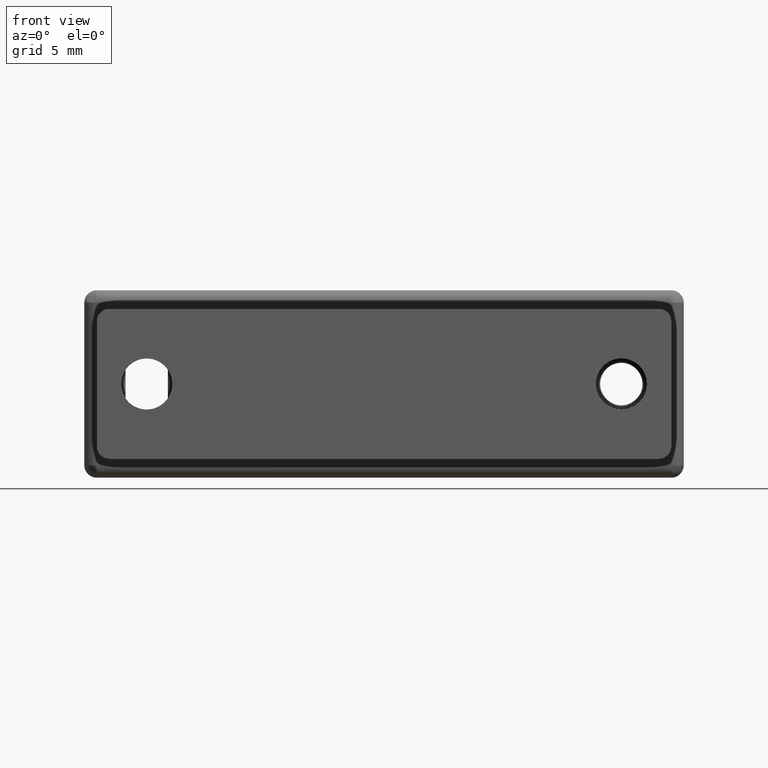
[diagram: clean part render]
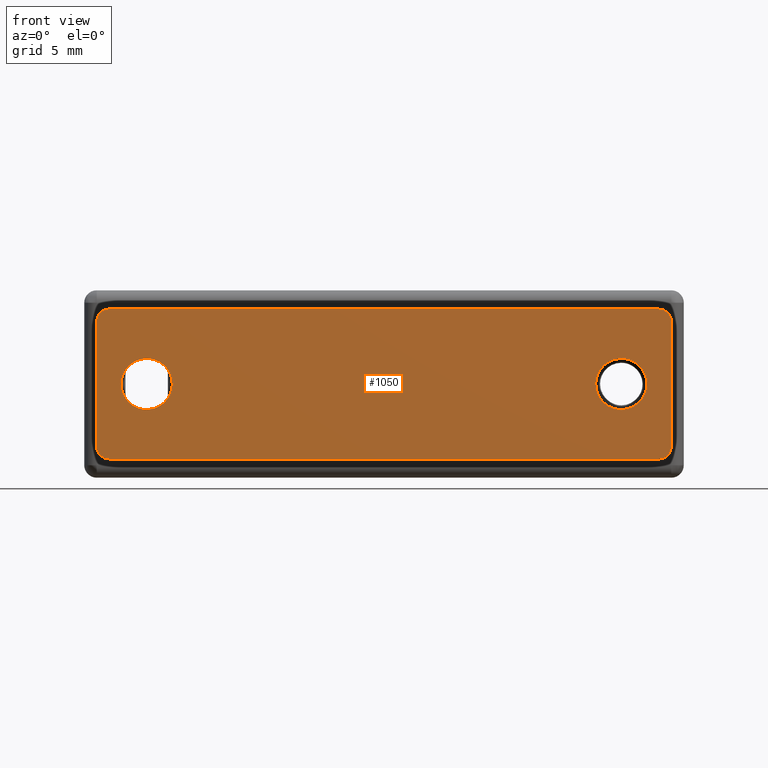
[diagram: same view with one face highlighted and labeled with its STEP entity id]
A machine part, front view. The second image highlights one B-rep face of the part: STEP entity #1050.
In plain terms, the highlighted face is a freeform B-spline surface patch.
Its self-contained STEP definition (entity closure, byte-faithful):
#467=CARTESIAN_POINT('',(-20.436864079127460,-29.999999999999559,-1.462163536301785));
#468=VERTEX_POINT('',#467);
#474=CARTESIAN_POINT('',(-19.0,-29.999999999999559,-2.050000000000000));
#475=VERTEX_POINT('',#474);
#476=CARTESIAN_POINT('',(-20.436864079127460,-29.999999999999559,-1.462163536301785));
#477=CARTESIAN_POINT('',(-20.289054048411650,-29.999999999999559,-1.607552764063697));
#478=CARTESIAN_POINT('',(-20.023668851965841,-29.999999999999559,-1.798805916572945));
#479=CARTESIAN_POINT('',(-19.530669847668840,-29.999999999999559,-2.000495183890043));
#480=CARTESIAN_POINT('',(-19.207329776754200,-29.999999999999559,-2.050106442760528));
#481=CARTESIAN_POINT('',(-19.0,-29.999999999999559,-2.050000000000000));
#482=B_SPLINE_CURVE_WITH_KNOTS('',3,(#476,#477,#478,#479,#480,#481),.UNSPECIFIED.,.F.,.U.,(4,1,1,4),(0.000000017414785,0.621949200354569,0.970237233710934,1.592186416656537),.UNSPECIFIED.);
#483=EDGE_CURVE('',#468,#475,#482,.T.);
#485=CARTESIAN_POINT('',(-16.950000000000081,-29.999999999999559,0.000000574504489));
#486=VERTEX_POINT('',#485);
#487=CARTESIAN_POINT('',(-19.0,-29.999999999999559,-2.050000000000000));
#488=CARTESIAN_POINT('',(-18.765185600314471,-29.999999999999559,-2.050150103275939));
#489=CARTESIAN_POINT('',(-18.345983679154891,-29.999999999999559,-1.977170828937081));
#490=CARTESIAN_POINT('',(-17.850254972064000,-29.999999999999559,-1.719903085629789));
#491=CARTESIAN_POINT('',(-17.467406887737582,-29.999999999999559,-1.389664780193586));
#492=CARTESIAN_POINT('',(-17.199729510531629,-29.999999999999559,-1.019329669488175));
#493=CARTESIAN_POINT('',(-16.999812779710400,-29.999999999999559,-0.536641262431359));
#494=CARTESIAN_POINT('',(-16.949912833262271,-29.999999999999559,-0.201267661097983));
#495=CARTESIAN_POINT('',(-16.950000000000081,-29.999999999999559,0.000000574504489));
#496=B_SPLINE_CURVE_WITH_KNOTS('',3,(#487,#488,#489,#490,#491,#492,#493,#494,#495),.UNSPECIFIED.,.F.,.U.,(4,1,1,1,1,1,4),(0.000000067482818,0.704407486572664,1.257881124150692,1.660379164355136,2.213853531746171,2.616375998825921,3.220152998701737),.UNSPECIFIED.);
#497=EDGE_CURVE('',#475,#486,#496,.T.);
#499=CARTESIAN_POINT('',(-17.563135920872529,-29.999999999999559,1.462163536301792));
#500=VERTEX_POINT('',#499);
#501=CARTESIAN_POINT('',(-16.950000000000081,-29.999999999999559,0.000000574504489));
#502=CARTESIAN_POINT('',(-16.949923630080541,-29.999999999999559,0.186548213415492));
#503=CARTESIAN_POINT('',(-16.988479085315412,-29.999999999999559,0.466303412686130));
#504=CARTESIAN_POINT('',(-17.130668263688300,-29.999999999999559,0.866752055618617));
#505=CARTESIAN_POINT('',(-17.307028653066428,-29.999999999999559,1.178406915836350));
#506=CARTESIAN_POINT('',(-17.478464422240648,-29.999999999999559,1.378967998711193));
#507=CARTESIAN_POINT('',(-17.563135920872529,-29.999999999999559,1.462163536301792));
#508=B_SPLINE_CURVE_WITH_KNOTS('',3,(#501,#502,#503,#504,#505,#506,#507),.UNSPECIFIED.,.F.,.U.,(4,1,1,1,4),(0.000000017230507,0.559614173227455,0.839409857661864,1.271849377901311,1.627965803969274),.UNSPECIFIED.);
#509=EDGE_CURVE('',#486,#500,#508,.T.);
#545=CARTESIAN_POINT('',(-19.0,-29.999999999999559,2.050000000000000));
#546=VERTEX_POINT('',#545);
#547=CARTESIAN_POINT('',(-17.563135920872529,-29.999999999999559,1.462163536301792));
#548=CARTESIAN_POINT('',(-17.710949902501341,-29.999999999999559,1.607544462460652));
#549=CARTESIAN_POINT('',(-17.969517634395839,-29.999999999999559,1.793913436087562));
#550=CARTESIAN_POINT('',(-18.461055660099088,-29.999999999999559,1.998472482075520));
#551=CARTESIAN_POINT('',(-18.784369019331422,-29.999999999999559,2.050119596137411));
#552=CARTESIAN_POINT('',(-19.0,-29.999999999999559,2.050000000000000));
#553=B_SPLINE_CURVE_WITH_KNOTS('',3,(#547,#548,#549,#550,#551,#552),.UNSPECIFIED.,.F.,.U.,(4,1,1,4),(0.000000017415266,0.621949200354731,0.945353906109911,1.592186416656537),.UNSPECIFIED.);
#554=EDGE_CURVE('',#500,#546,#553,.T.);
#556=CARTESIAN_POINT('',(-21.049999999999919,-29.999999999999559,-0.000000574504452));
#557=VERTEX_POINT('',#556);
#558=CARTESIAN_POINT('',(-19.0,-29.999999999999559,2.050000000000000));
#559=CARTESIAN_POINT('',(-19.134168940292849,-29.999999999999559,2.050009750336534));
#560=CARTESIAN_POINT('',(-19.436061260570799,-29.999999999999559,2.020286757873364));
#561=CARTESIAN_POINT('',(-19.853239038381169,-29.999999999999559,1.882481428322629));
#562=CARTESIAN_POINT('',(-20.185690467067399,-29.999999999999559,1.683170955545929));
#563=CARTESIAN_POINT('',(-20.455680162435289,-29.999999999999559,1.455978984068700));
#564=CARTESIAN_POINT('',(-20.719929168735419,-29.999999999999559,1.149763615605854));
#565=CARTESIAN_POINT('',(-20.977139570316059,-29.999999999999559,0.653997922229112));
#566=CARTESIAN_POINT('',(-21.050169041045159,-29.999999999999559,0.234821196708818));
#567=CARTESIAN_POINT('',(-21.049999999999919,-29.999999999999559,-0.000000574504452));
#568=B_SPLINE_CURVE_WITH_KNOTS('',3,(#558,#559,#560,#561,#562,#563,#564,#565,#566,#567),.UNSPECIFIED.,.F.,.U.,(4,1,1,1,1,1,1,4),(0.000000067484851,0.402511622938956,0.905670454519590,1.308190456257221,1.559774067054043,1.962273004913500,2.515746403148459,3.220152998701717),.UNSPECIFIED.);
#569=EDGE_CURVE('',#546,#557,#568,.T.);
#571=CARTESIAN_POINT('',(-21.049999999999919,-29.999999999999559,-0.000000574504452));
#572=CARTESIAN_POINT('',(-21.050161980776949,-29.999999999999559,-0.237438894207779));
#573=CARTESIAN_POINT('',(-20.984442807389868,-29.999999999999559,-0.610384459095505));
#574=CARTESIAN_POINT('',(-20.748806110208999,-29.999999999999559,-1.102197020707500));
#575=CARTESIAN_POINT('',(-20.557848263694979,-29.999999999999559,-1.343332788895103));
#576=CARTESIAN_POINT('',(-20.436864079127460,-29.999999999999559,-1.462163536301785));
#577=B_SPLINE_CURVE_WITH_KNOTS('',3,(#571,#572,#573,#574,#575,#576),.UNSPECIFIED.,.F.,.U.,(4,1,1,4),(0.000000017231172,0.712242852252814,1.119225334430734,1.627965803969309),.UNSPECIFIED.);
#578=EDGE_CURVE('',#557,#468,#577,.T.);
#603=CARTESIAN_POINT('',(17.563135920872540,-29.999999999999559,-1.462163536301785));
#604=VERTEX_POINT('',#603);
#610=CARTESIAN_POINT('',(19.0,-29.999999999999559,-2.050000000000000));
#611=VERTEX_POINT('',#610);
#612=CARTESIAN_POINT('',(17.563135920872540,-29.999999999999559,-1.462163536301785));
#613=CARTESIAN_POINT('',(17.728654288720499,-29.999999999999559,-1.625041350687800));
#614=CARTESIAN_POINT('',(18.039778316195019,-29.999999999999559,-1.840676915473277));
#615=CARTESIAN_POINT('',(18.543924975602359,-29.999999999999559,-2.015406387320155));
#616=CARTESIAN_POINT('',(18.842437295496602,-29.999999999999559,-2.050033472118738));
#617=CARTESIAN_POINT('',(19.0,-29.999999999999559,-2.050000000000000));
#618=B_SPLINE_CURVE_WITH_KNOTS('',3,(#612,#613,#614,#615,#616,#617),.UNSPECIFIED.,.F.,.U.,(4,1,1,4),(0.000000017416220,0.696588079914280,1.119504314400410,1.592186416656536),.UNSPECIFIED.);
#619=EDGE_CURVE('',#604,#611,#618,.T.);
#621=CARTESIAN_POINT('',(21.049999999999919,-29.999999999999559,0.000000574504488));
#622=VERTEX_POINT('',#621);
#623=CARTESIAN_POINT('',(19.0,-29.999999999999559,-2.050000000000000));
#624=CARTESIAN_POINT('',(19.234833933668259,-29.999999999999559,-2.050177786231111));
#625=CARTESIAN_POINT('',(19.553364829414569,-29.999999999999559,-1.994633206735927));
#626=CARTESIAN_POINT('',(20.008980522164531,-29.999999999999559,-1.799323885893095));
#627=CARTESIAN_POINT('',(20.387089251229309,-29.999999999999559,-1.543368241335368));
#628=CARTESIAN_POINT('',(20.711152390278730,-29.999999999999559,-1.162984723217685));
#629=CARTESIAN_POINT('',(20.906540526963401,-29.999999999999559,-0.780501006980914));
#630=CARTESIAN_POINT('',(21.021153046105699,-29.999999999999559,-0.410887956150659));
#631=CARTESIAN_POINT('',(21.050028587379920,-29.999999999999559,-0.150942024861552));
#632=CARTESIAN_POINT('',(21.049999999999919,-29.999999999999559,0.000000574504488));
#633=B_SPLINE_CURVE_WITH_KNOTS('',3,(#623,#624,#625,#626,#627,#628,#629,#630,#631,#632),.UNSPECIFIED.,.F.,.U.,(4,1,1,1,1,1,1,4),(0.000000067482361,0.704407486571985,0.955985078469058,1.484292186825174,2.062900357698278,2.440272509214285,2.767329173351614,3.220152998701738),.UNSPECIFIED.);
#634=EDGE_CURVE('',#611,#622,#633,.T.);
#636=CARTESIAN_POINT('',(20.436864079127471,-29.999999999999559,1.462163536301791));
#637=VERTEX_POINT('',#636);
#638=CARTESIAN_POINT('',(21.049999999999919,-29.999999999999559,0.000000574504488));
#639=CARTESIAN_POINT('',(21.050067804983421,-29.999999999999559,0.186544589393011));
#640=CARTESIAN_POINT('',(21.001053932376490,-29.999999999999559,0.542625382149363));
#641=CARTESIAN_POINT('',(20.789591865145781,-29.999999999999559,1.046925792746162));
#642=CARTESIAN_POINT('',(20.569961448105690,-29.999999999999559,1.331459847316308));
#643=CARTESIAN_POINT('',(20.436864079127471,-29.999999999999559,1.462163536301791));
#644=B_SPLINE_CURVE_WITH_KNOTS('',3,(#638,#639,#640,#641,#642,#643),.UNSPECIFIED.,.F.,.U.,(4,1,1,4),(0.000000017231742,0.559614173228156,1.068351647976247,1.627965803969260),.UNSPECIFIED.);
#645=EDGE_CURVE('',#622,#637,#644,.T.);
#681=CARTESIAN_POINT('',(19.0,-29.999999999999559,2.050000000000000));
#682=VERTEX_POINT('',#681);
#683=CARTESIAN_POINT('',(20.436864079127471,-29.999999999999559,1.462163536301791));
#684=CARTESIAN_POINT('',(20.324500968281679,-29.999999999999559,1.572613592145147));
#685=CARTESIAN_POINT('',(20.054402096488960,-29.999999999999559,1.782847158236356));
#686=CARTESIAN_POINT('',(19.563868639713910,-29.999999999999559,1.997543393573993));
#687=CARTESIAN_POINT('',(19.190737088937770,-29.999999999999559,2.050072883659170));
#688=CARTESIAN_POINT('',(19.0,-29.999999999999559,2.050000000000000));
#689=B_SPLINE_CURVE_WITH_KNOTS('',3,(#683,#684,#685,#686,#687,#688),.UNSPECIFIED.,.F.,.U.,(4,1,1,4),(0.000000017418039,0.472682119687296,1.019993144028484,1.592186416656537),.UNSPECIFIED.);
#690=EDGE_CURVE('',#637,#682,#689,.T.);
#692=CARTESIAN_POINT('',(16.950000000000081,-29.999999999999559,-0.000000574504454));
#693=VERTEX_POINT('',#692);
#694=CARTESIAN_POINT('',(19.0,-29.999999999999559,2.050000000000000));
#695=CARTESIAN_POINT('',(18.781951340907131,-29.999999999999559,2.050116131809940));
#696=CARTESIAN_POINT('',(18.463377554794828,-29.999999999999559,1.998673053464636));
#697=CARTESIAN_POINT('',(18.036104983471880,-29.999999999999559,1.821651905952941));
#698=CARTESIAN_POINT('',(17.759390230168069,-29.999999999999559,1.644041302840997));
#699=CARTESIAN_POINT('',(17.485480632267532,-29.999999999999559,1.395787650404613));
#700=CARTESIAN_POINT('',(17.265900097820818,-29.999999999999559,1.117969711914220));
#701=CARTESIAN_POINT('',(17.093451346180139,-29.999999999999559,0.780506782395758));
#702=CARTESIAN_POINT('',(16.978846571792879,-29.999999999999559,0.410888064544797));
#703=CARTESIAN_POINT('',(16.949971543570278,-29.999999999999559,0.150941998111433));
#704=CARTESIAN_POINT('',(16.950000000000081,-29.999999999999559,-0.000000574504454));
#705=B_SPLINE_CURVE_WITH_KNOTS('',3,(#694,#695,#696,#697,#698,#699,#700,#701,#702,#703,#704),.UNSPECIFIED.,.F.,.U.,(4,1,1,1,1,1,1,1,4),(0.000000067483155,0.654093324474756,0.955985078469944,1.383673280945708,1.635213400500792,2.062900357698421,2.440272509214299,2.767329173351624,3.220152998701716),.UNSPECIFIED.);
#706=EDGE_CURVE('',#682,#693,#705,.T.);
#708=CARTESIAN_POINT('',(16.950000000000081,-29.999999999999559,-0.000000574504454));
#709=CARTESIAN_POINT('',(16.949944491048189,-29.999999999999559,-0.186542926559469));
#710=CARTESIAN_POINT('',(16.998931735223980,-29.999999999999559,-0.542627260309133));
#711=CARTESIAN_POINT('',(17.210414754840979,-29.999999999999559,-1.046924671163316));
#712=CARTESIAN_POINT('',(17.430036348818181,-29.999999999999559,-1.331460568996741));
#713=CARTESIAN_POINT('',(17.563135920872540,-29.999999999999559,-1.462163536301785));
#714=B_SPLINE_CURVE_WITH_KNOTS('',3,(#708,#709,#710,#711,#712,#713),.UNSPECIFIED.,.F.,.U.,(4,1,1,4),(0.000000017230204,0.559614173227380,1.068351647976019,1.627965803969304),.UNSPECIFIED.);
#715=EDGE_CURVE('',#693,#604,#714,.T.);
#735=CARTESIAN_POINT('',(-22.0,-29.999999999999549,6.000000000000091));
#736=VERTEX_POINT('',#735);
#742=CARTESIAN_POINT('',(22.0,-29.999999999999549,6.000000000000091));
#743=VERTEX_POINT('',#742);
#744=CARTESIAN_POINT('',(22.0,-29.999999999999549,6.000000000000091));
#745=CARTESIAN_POINT('',(-22.0,-29.999999999999549,6.000000000000091));
#746=QUASI_UNIFORM_CURVE('',1,(#744,#745),.UNSPECIFIED.,.F.,.U.);
#747=EDGE_CURVE('',#743,#736,#746,.T.);
#762=CARTESIAN_POINT('',(23.0,-29.999999999999549,-4.999999999999920));
#763=VERTEX_POINT('',#762);
#764=CARTESIAN_POINT('',(23.0,-29.999999999999549,5.000000000000080));
#765=VERTEX_POINT('',#764);
#766=CARTESIAN_POINT('',(23.0,-29.999999999999549,-4.999999999999920));
#767=CARTESIAN_POINT('',(23.0,-29.999999999999549,5.000000000000080));
#768=QUASI_UNIFORM_CURVE('',1,(#766,#767),.UNSPECIFIED.,.F.,.U.);
#769=EDGE_CURVE('',#763,#765,#768,.T.);
#798=CARTESIAN_POINT('',(-22.0,-29.999999999999549,-5.999999999999920));
#799=VERTEX_POINT('',#798);
#800=CARTESIAN_POINT('',(22.0,-29.999999999999549,-5.999999999999920));
#801=VERTEX_POINT('',#800);
#802=CARTESIAN_POINT('',(-22.0,-29.999999999999549,-5.999999999999920));
#803=CARTESIAN_POINT('',(22.0,-29.999999999999549,-5.999999999999920));
#804=QUASI_UNIFORM_CURVE('',1,(#802,#803),.UNSPECIFIED.,.F.,.U.);
#805=EDGE_CURVE('',#799,#801,#804,.T.);
#855=CARTESIAN_POINT('',(23.0,-29.999999999999549,5.000000000000080));
#856=CARTESIAN_POINT('',(23.000113340730540,-29.999999999999549,5.122737273802853));
#857=CARTESIAN_POINT('',(22.963378350624719,-29.999999999999549,5.319004067702010));
#858=CARTESIAN_POINT('',(22.845830679814959,-29.999999999999559,5.545497748242590));
#859=CARTESIAN_POINT('',(22.717556899145311,-29.999999999999559,5.705767898413665));
#860=CARTESIAN_POINT('',(22.560109483877049,-29.999999999999559,5.838261801524642));
#861=CARTESIAN_POINT('',(22.319001634255219,-29.999999999999549,5.963374409682928));
#862=CARTESIAN_POINT('',(22.122737479658301,-29.999999999999549,6.000112182510588));
#863=CARTESIAN_POINT('',(22.0,-29.999999999999549,6.000000000000091));
#864=B_SPLINE_CURVE_WITH_KNOTS('',3,(#855,#856,#857,#858,#859,#860,#861,#862,#863),.UNSPECIFIED.,.F.,.U.,(4,1,1,1,1,1,4),(0.000000086229330,0.368164252459916,0.589074653022015,0.760885021626260,0.981761028777763,1.202671843889862,1.570835744339955),.UNSPECIFIED.);
#865=EDGE_CURVE('',#765,#743,#864,.T.);
#898=CARTESIAN_POINT('',(22.0,-29.999999999999549,-5.999999999999920));
#899=CARTESIAN_POINT('',(22.122736836177300,-29.999999999999549,-6.000104148405167));
#900=CARTESIAN_POINT('',(22.319001778229438,-29.999999999999549,-5.963382542790469));
#901=CARTESIAN_POINT('',(22.560109721021330,-29.999999999999559,-5.838258040640324));
#902=CARTESIAN_POINT('',(22.717557305983568,-29.999999999999559,-5.705770430037635));
#903=CARTESIAN_POINT('',(22.845829557730148,-29.999999999999559,-5.545495765664172));
#904=CARTESIAN_POINT('',(22.963382060459931,-29.999999999999549,-5.319006537542354));
#905=CARTESIAN_POINT('',(23.000109498873378,-29.999999999999549,-5.122735550966532));
#906=CARTESIAN_POINT('',(23.0,-29.999999999999549,-4.999999999999920));
#907=B_SPLINE_CURVE_WITH_KNOTS('',3,(#898,#899,#900,#901,#902,#903,#904,#905,#906),.UNSPECIFIED.,.F.,.U.,(4,1,1,1,1,1,4),(0.000000086229359,0.368164252459777,0.589074653021861,0.809950585865117,0.981761028777693,1.202671843889884,1.570835744339963),.UNSPECIFIED.);
#908=EDGE_CURVE('',#801,#763,#907,.T.);
#942=CARTESIAN_POINT('',(-23.0,-29.999999999999549,5.000000000000091));
#943=VERTEX_POINT('',#942);
#949=CARTESIAN_POINT('',(-22.0,-29.999999999999549,6.000000000000091));
#950=CARTESIAN_POINT('',(-22.122736659939999,-29.999999999999549,6.000113030676959));
#951=CARTESIAN_POINT('',(-22.319005768632699,-29.999999999999549,5.963379140205730));
#952=CARTESIAN_POINT('',(-22.545495543040211,-29.999999999999559,5.845829754895370));
#953=CARTESIAN_POINT('',(-22.705768818211951,-29.999999999999559,5.717556539601780));
#954=CARTESIAN_POINT('',(-22.848874184547491,-29.999999999999559,5.547521325150012));
#955=CARTESIAN_POINT('',(-22.968379916507029,-29.999999999999549,5.302676480272303));
#956=CARTESIAN_POINT('',(-23.000052805143781,-29.999999999999549,5.106361278553761));
#957=CARTESIAN_POINT('',(-23.0,-29.999999999999549,5.000000000000091));
#958=B_SPLINE_CURVE_WITH_KNOTS('',3,(#949,#950,#951,#952,#953,#954,#955,#956,#957),.UNSPECIFIED.,.F.,.U.,(4,1,1,1,1,1,4),(0.000000086231507,0.368164252461519,0.589074653023367,0.760885021627446,0.981761028778684,1.251764078763210,1.570835744339920),.UNSPECIFIED.);
#959=EDGE_CURVE('',#736,#943,#958,.T.);
#994=CARTESIAN_POINT('',(-23.0,-29.999999999999549,-4.999999999999910));
#995=VERTEX_POINT('',#994);
#996=CARTESIAN_POINT('',(-23.0,-29.999999999999549,-4.999999999999910));
#997=CARTESIAN_POINT('',(-23.000113256415109,-29.999999999999549,-5.122736881363638));
#998=CARTESIAN_POINT('',(-22.963370970111640,-29.999999999999549,-5.318998541371360));
#999=CARTESIAN_POINT('',(-22.819342398481179,-29.999999999999559,-5.596680085804220));
#1000=CARTESIAN_POINT('',(-22.624713379230819,-29.999999999999559,-5.801115591326288));
#1001=CARTESIAN_POINT('',(-22.335363912622999,-29.999999999999549,-5.960327778504166));
#1002=CARTESIAN_POINT('',(-22.122731836053681,-29.999999999999549,-6.000106329864998));
#1003=CARTESIAN_POINT('',(-22.0,-29.999999999999549,-5.999999999999920));
#1004=B_SPLINE_CURVE_WITH_KNOTS('',3,(#996,#997,#998,#999,#1000,#1001,#1002,#1003),.UNSPECIFIED.,.F.,.U.,(4,1,1,1,1,4),(0.000000086228248,0.368164252459172,0.589074653021513,0.932680297083806,1.202671843889985,1.570835744339955),.UNSPECIFIED.);
#1005=EDGE_CURVE('',#995,#799,#1004,.T.);
#1015=CARTESIAN_POINT('',(-25.297699910843079,-29.999999999999549,6.599399976741763));
#1016=CARTESIAN_POINT('',(25.297701144659229,-29.999999999999549,6.599399976741763));
#1017=CARTESIAN_POINT('',(-25.297699910843079,-29.999999999999549,-6.599400298606672));
#1018=CARTESIAN_POINT('',(25.297701144659229,-29.999999999999549,-6.599400298606672));
#1019=B_SPLINE_SURFACE_WITH_KNOTS('',1,1,((#1015,#1017),(#1016,#1018)),.UNSPECIFIED.,.F.,.F.,.U.,(2,2),(2,2),(0.0,50.595401055502307),(0.0,13.198800275348439),.UNSPECIFIED.);
#1020=CARTESIAN_POINT('',(-23.0,-29.999999999999549,5.000000000000091));
#1021=CARTESIAN_POINT('',(-23.0,-29.999999999999549,-4.999999999999910));
#1022=QUASI_UNIFORM_CURVE('',1,(#1020,#1021),.UNSPECIFIED.,.F.,.U.);
#1023=EDGE_CURVE('',#943,#995,#1022,.T.);
#1024=ORIENTED_EDGE('',*,*,#1023,.T.);
#1025=ORIENTED_EDGE('',*,*,#1005,.T.);
#1026=ORIENTED_EDGE('',*,*,#805,.T.);
#1027=ORIENTED_EDGE('',*,*,#908,.T.);
#1028=ORIENTED_EDGE('',*,*,#769,.T.);
#1029=ORIENTED_EDGE('',*,*,#865,.T.);
#1030=ORIENTED_EDGE('',*,*,#747,.T.);
#1031=ORIENTED_EDGE('',*,*,#959,.T.);
#1032=EDGE_LOOP('',(#1024,#1025,#1026,#1027,#1028,#1029,#1030,#1031));
#1033=FACE_OUTER_BOUND('',#1032,.T.);
#1034=ORIENTED_EDGE('',*,*,#706,.F.);
#1035=ORIENTED_EDGE('',*,*,#690,.F.);
#1036=ORIENTED_EDGE('',*,*,#645,.F.);
#1037=ORIENTED_EDGE('',*,*,#634,.F.);
#1038=ORIENTED_EDGE('',*,*,#619,.F.);
#1039=ORIENTED_EDGE('',*,*,#715,.F.);
#1040=EDGE_LOOP('',(#1034,#1035,#1036,#1037,#1038,#1039));
#1041=FACE_BOUND('',#1040,.T.);
#1042=ORIENTED_EDGE('',*,*,#569,.F.);
#1043=ORIENTED_EDGE('',*,*,#554,.F.);
#1044=ORIENTED_EDGE('',*,*,#509,.F.);
#1045=ORIENTED_EDGE('',*,*,#497,.F.);
#1046=ORIENTED_EDGE('',*,*,#483,.F.);
#1047=ORIENTED_EDGE('',*,*,#578,.F.);
#1048=EDGE_LOOP('',(#1042,#1043,#1044,#1045,#1046,#1047));
#1049=FACE_BOUND('',#1048,.T.);
#1050=ADVANCED_FACE('',(#1033,#1041,#1049),#1019,.F.);